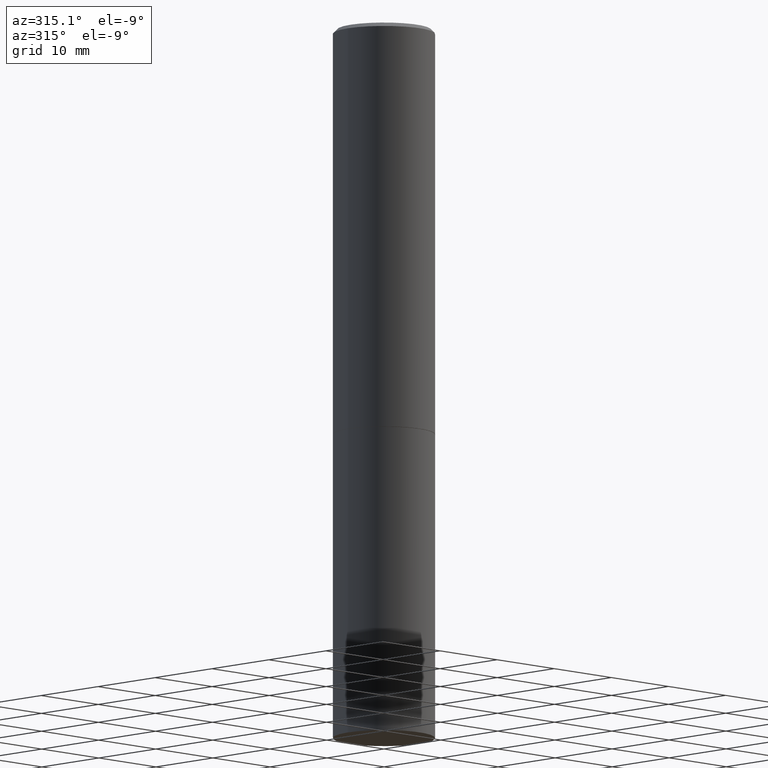
[diagram: clean part render]
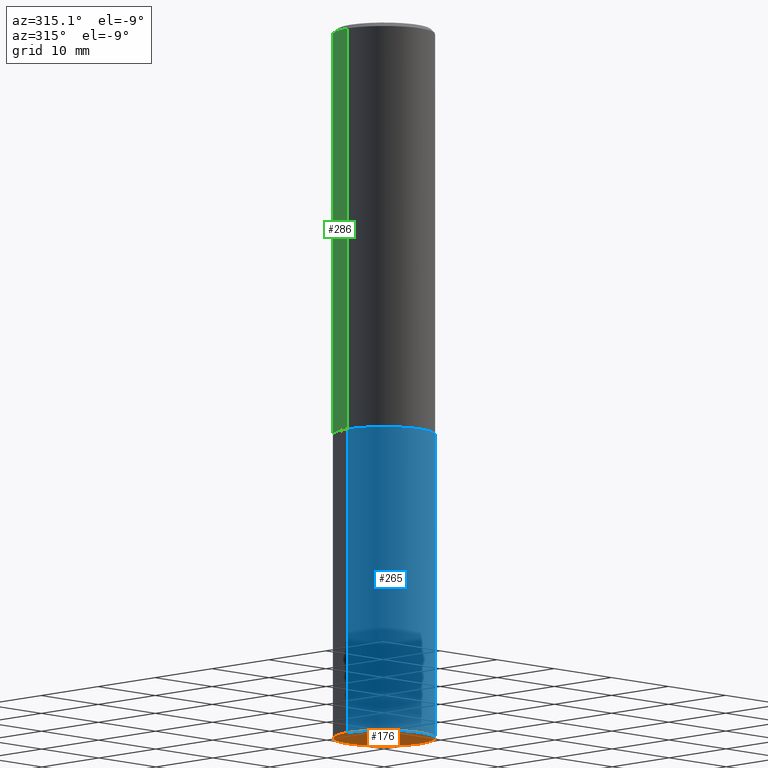
[diagram: same view with three faces highlighted in distinct colors, each labeled with its STEP entity id]
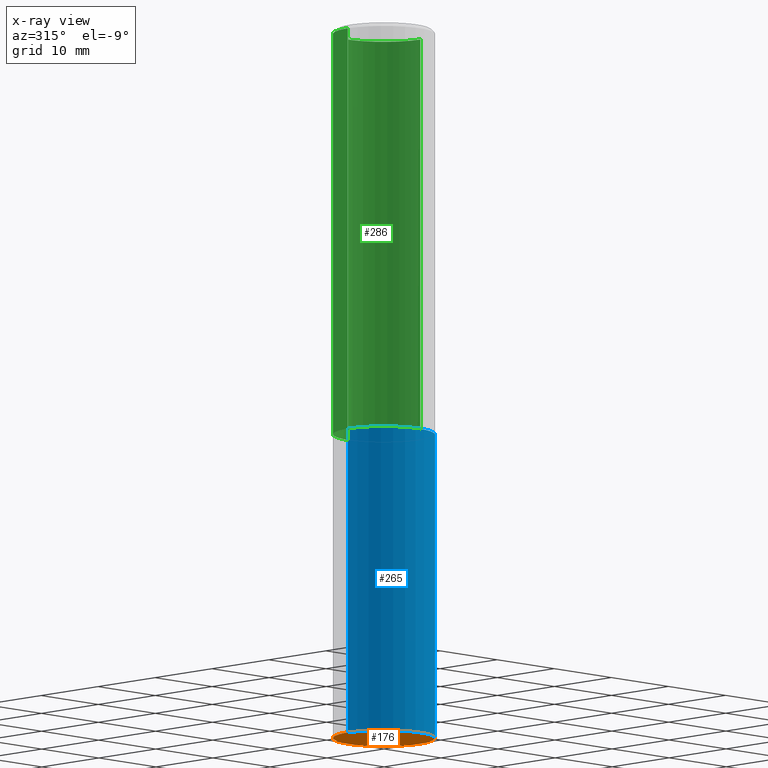
[diagram: x-ray of the same camera — body ghosted, the three highlighted faces saturated]
A machine part, auxiliary view with three faces highlighted in distinct colors.
The next image is the same camera in x-ray (body ghosted, the three faces saturated) — at least one of them is partly hidden behind the body in this view.
Their STEP definitions:

[orange] entity #176 — the highlighted planar face has unit normal (0, -0, -1).
#4 = EDGE_CURVE ( 'NONE', #82, #198, #326, .T. ) ;
#12 = CARTESIAN_POINT ( 'NONE',  ( 1.745740669421652072E-15, 0.2499999999999877598, -3.500000000000000888 ) ) ;
#21 = ORIENTED_EDGE ( 'NONE', *, *, #233, .F. ) ;
#26 = AXIS2_PLACEMENT_3D ( 'NONE', #12, #306, #158 ) ;
#58 = CARTESIAN_POINT ( 'NONE',  ( 8.559140821647976968E-29, -1.222018468595100934E-14, -3.500000000000000000 ) ) ;
#59 = CARTESIAN_POINT ( 'NONE',  ( 8.559140821647976968E-29, -1.222018468595100934E-14, -3.500000000000000000 ) ) ;
#82 = VERTEX_POINT ( 'NONE', #183 ) ;
#93 = EDGE_LOOP ( 'NONE', ( #21, #152 ) ) ;
#96 = AXIS2_PLACEMENT_3D ( 'NONE', #59, #268, #234 ) ;
#106 = FACE_OUTER_BOUND ( 'NONE', #93, .T. ) ;
#152 = ORIENTED_EDGE ( 'NONE', *, *, #4, .F. ) ;
#158 = DIRECTION ( 'NONE',  ( -1.000000000000000000, 6.982962677686265922E-15, -4.876176775795935793E-29 ) ) ;
#167 = DIRECTION ( 'NONE',  ( 1.000000000000000000, -6.982962677686270655E-15, 0.000000000000000000 ) ) ;
#176 = ADVANCED_FACE ( 'NONE', ( #106 ), #217, .T. ) ;
#183 = CARTESIAN_POINT ( 'NONE',  ( -0.2500000000000000000, -7.825216842418399394E-15, -3.500000000000000000 ) ) ;
#193 = CARTESIAN_POINT ( 'NONE',  ( 0.2500000000000000000, -1.396592535537257602E-14, -3.500000000000000000 ) ) ;
#198 = VERTEX_POINT ( 'NONE', #193 ) ;
#199 = DIRECTION ( 'NONE',  ( -2.445468806185136597E-29, 3.491481338843145583E-15, 1.000000000000000000 ) ) ;
#217 = PLANE ( 'NONE',  #26 ) ;
#233 = EDGE_CURVE ( 'NONE', #198, #82, #287, .T. ) ;
#234 = DIRECTION ( 'NONE',  ( 1.000000000000000000, -6.982962677686270655E-15, 0.000000000000000000 ) ) ;
#268 = DIRECTION ( 'NONE',  ( -2.445468806185136597E-29, 3.491481338843145583E-15, 1.000000000000000000 ) ) ;
#287 = CIRCLE ( 'NONE', #344, 0.2500000000000000000 ) ;
#306 = DIRECTION ( 'NONE',  ( 2.438088387897960049E-29, -3.491481338843145188E-15, -1.000000000000000000 ) ) ;
#326 = CIRCLE ( 'NONE', #96, 0.2500000000000000000 ) ;
#344 = AXIS2_PLACEMENT_3D ( 'NONE', #58, #199, #167 ) ;

[blue] entity #265 — the highlighted cylindrical surface (partial cylindrical patch) has radius 6.35 mm, axis along (-0, 0, 1).
#4 = EDGE_CURVE ( 'NONE', #82, #198, #326, .T. ) ;
#8 = CARTESIAN_POINT ( 'NONE',  ( 0.2500000000000000000, -1.745740669421566678E-15, 1.219044193948983948E-29 ) ) ;
#11 = CARTESIAN_POINT ( 'NONE',  ( -0.2500000000000000000, 1.776356839400250465E-15, -1.229733772563726445E-29 ) ) ;
#25 = CARTESIAN_POINT ( 'NONE',  ( 0.000000000000000000, 0.000000000000000000, 0.000000000000000000 ) ) ;
#41 = DIRECTION ( 'NONE',  ( 1.000000000000000000, -6.982962677686266711E-15, 0.000000000000000000 ) ) ;
#44 = VECTOR ( 'NONE', #270, 39.37007874015748143 ) ;
#59 = CARTESIAN_POINT ( 'NONE',  ( 8.559140821647976968E-29, -1.222018468595100934E-14, -3.500000000000000000 ) ) ;
#71 = LINE ( 'NONE', #8, #44 ) ;
#75 = LINE ( 'NONE', #11, #282 ) ;
#77 = DIRECTION ( 'NONE',  ( -2.445468806185136877E-29, 3.491481338843145188E-15, 1.000000000000000000 ) ) ;
#82 = VERTEX_POINT ( 'NONE', #183 ) ;
#83 = VERTEX_POINT ( 'NONE', #269 ) ;
#96 = AXIS2_PLACEMENT_3D ( 'NONE', #59, #268, #234 ) ;
#102 = ORIENTED_EDGE ( 'NONE', *, *, #291, .F. ) ;
#109 = ORIENTED_EDGE ( 'NONE', *, *, #4, .T. ) ;
#119 = DIRECTION ( 'NONE',  ( -2.445468806185136597E-29, 3.491481338843145583E-15, 1.000000000000000000 ) ) ;
#183 = CARTESIAN_POINT ( 'NONE',  ( -0.2500000000000000000, -7.825216842418399394E-15, -3.500000000000000000 ) ) ;
#189 = CARTESIAN_POINT ( 'NONE',  ( 0.2500000000000000000, -8.728703347107857054E-15, -2.000000000000000000 ) ) ;
#193 = CARTESIAN_POINT ( 'NONE',  ( 0.2500000000000000000, -1.396592535537257602E-14, -3.500000000000000000 ) ) ;
#198 = VERTEX_POINT ( 'NONE', #193 ) ;
#201 = DIRECTION ( 'NONE',  ( 1.000000000000000000, -6.982962677686266711E-15, 4.876176775795935793E-29 ) ) ;
#224 = AXIS2_PLACEMENT_3D ( 'NONE', #25, #365, #201 ) ;
#234 = DIRECTION ( 'NONE',  ( 1.000000000000000000, -6.982962677686270655E-15, 0.000000000000000000 ) ) ;
#242 = ORIENTED_EDGE ( 'NONE', *, *, #312, .T. ) ;
#263 = CARTESIAN_POINT ( 'NONE',  ( 4.890937612370273194E-29, -6.982962677686291165E-15, -2.000000000000000000 ) ) ;
#265 = ADVANCED_FACE ( 'NONE', ( #363 ), #285, .T. ) ;
#268 = DIRECTION ( 'NONE',  ( -2.445468806185136597E-29, 3.491481338843145583E-15, 1.000000000000000000 ) ) ;
#269 = CARTESIAN_POINT ( 'NONE',  ( -0.2500000000000000000, -7.825216842418399394E-15, -2.000000000000000000 ) ) ;
#270 = DIRECTION ( 'NONE',  ( -2.445468806185136877E-29, 3.491481338843145188E-15, 1.000000000000000000 ) ) ;
#282 = VECTOR ( 'NONE', #77, 39.37007874015748143 ) ;
#285 = CYLINDRICAL_SURFACE ( 'NONE', #224, 0.2500000000000000000 ) ;
#291 = EDGE_CURVE ( 'NONE', #83, #353, #316, .T. ) ;
#302 = ORIENTED_EDGE ( 'NONE', *, *, #351, .F. ) ;
#312 = EDGE_CURVE ( 'NONE', #198, #353, #71, .T. ) ;
#316 = CIRCLE ( 'NONE', #359, 0.2500000000000000000 ) ;
#326 = CIRCLE ( 'NONE', #96, 0.2500000000000000000 ) ;
#331 = EDGE_LOOP ( 'NONE', ( #302, #109, #242, #102 ) ) ;
#351 = EDGE_CURVE ( 'NONE', #82, #83, #75, .T. ) ;
#353 = VERTEX_POINT ( 'NONE', #189 ) ;
#359 = AXIS2_PLACEMENT_3D ( 'NONE', #263, #119, #41 ) ;
#363 = FACE_OUTER_BOUND ( 'NONE', #331, .T. ) ;
#365 = DIRECTION ( 'NONE',  ( -2.445468806185136597E-29, 3.491481338843145583E-15, 1.000000000000000000 ) ) ;

[green] entity #286 — the highlighted cylindrical surface (partial cylindrical patch) has radius 6.35 mm, axis along (-0, 0, 1).
#15 = ORIENTED_EDGE ( 'NONE', *, *, #170, .T. ) ;
#17 = VERTEX_POINT ( 'NONE', #180 ) ;
#18 = AXIS2_PLACEMENT_3D ( 'NONE', #232, #255, #226 ) ;
#36 = EDGE_CURVE ( 'NONE', #136, #17, #230, .T. ) ;
#45 = EDGE_CURVE ( 'NONE', #136, #221, #117, .T. ) ;
#63 = CYLINDRICAL_SURFACE ( 'NONE', #247, 0.2499999999999998890 ) ;
#67 = ORIENTED_EDGE ( 'NONE', *, *, #45, .F. ) ;
#68 = VECTOR ( 'NONE', #259, 39.37007874015748143 ) ;
#78 = DIRECTION ( 'NONE',  ( -2.445468806185136877E-29, 3.491481338843145188E-15, 1.000000000000000000 ) ) ;
#101 = LINE ( 'NONE', #223, #319 ) ;
#117 = LINE ( 'NONE', #296, #68 ) ;
#136 = VERTEX_POINT ( 'NONE', #271 ) ;
#144 = DIRECTION ( 'NONE',  ( -2.445468806185136597E-29, 3.491481338843145583E-15, 1.000000000000000000 ) ) ;
#149 = DIRECTION ( 'NONE',  ( 1.000000000000000000, -6.982962677686266711E-15, 4.876176775795935793E-29 ) ) ;
#170 = EDGE_CURVE ( 'NONE', #17, #356, #101, .T. ) ;
#177 = CARTESIAN_POINT ( 'NONE',  ( 0.000000000000000000, 0.000000000000000000, 0.000000000000000000 ) ) ;
#180 = CARTESIAN_POINT ( 'NONE',  ( -0.2500000000000000000, -1.748293572161903489E-15, -1.998999999999999888 ) ) ;
#210 = DIRECTION ( 'NONE',  ( 1.000000000000000000, -6.982962677686266711E-15, 0.000000000000000000 ) ) ;
#211 = CIRCLE ( 'NONE', #18, 0.2499999999999998057 ) ;
#212 = ORIENTED_EDGE ( 'NONE', *, *, #237, .F. ) ;
#221 = VERTEX_POINT ( 'NONE', #334 ) ;
#223 = CARTESIAN_POINT ( 'NONE',  ( -0.2499999999999998890, 1.776356839400249676E-15, -1.229733772563726025E-29 ) ) ;
#226 = DIRECTION ( 'NONE',  ( 1.000000000000000000, -6.982962677686266711E-15, 0.000000000000000000 ) ) ;
#230 = CIRCLE ( 'NONE', #310, 0.2500000000000000000 ) ;
#232 = CARTESIAN_POINT ( 'NONE',  ( 4.890937612370287172E-31, -6.982962677686310098E-17, -0.02000000000000005593 ) ) ;
#237 = EDGE_CURVE ( 'NONE', #221, #356, #211, .T. ) ;
#238 = CARTESIAN_POINT ( 'NONE',  ( 4.888492143564087591E-29, -6.979471196347447369E-15, -1.998999999999999888 ) ) ;
#247 = AXIS2_PLACEMENT_3D ( 'NONE', #177, #290, #149 ) ;
#255 = DIRECTION ( 'NONE',  ( -2.445468806185136597E-29, 3.491481338843145583E-15, 1.000000000000000000 ) ) ;
#259 = DIRECTION ( 'NONE',  ( -2.445468806185136877E-29, 3.491481338843145188E-15, 1.000000000000000000 ) ) ;
#271 = CARTESIAN_POINT ( 'NONE',  ( 0.2500000000000000000, -8.725211865769014047E-15, -1.998999999999999888 ) ) ;
#286 = ADVANCED_FACE ( 'NONE', ( #342 ), #63, .T. ) ;
#290 = DIRECTION ( 'NONE',  ( -2.445468806185136597E-29, 3.491481338843145583E-15, 1.000000000000000000 ) ) ;
#296 = CARTESIAN_POINT ( 'NONE',  ( 0.2499999999999998890, -1.745740669421565889E-15, 1.219044193948983388E-29 ) ) ;
#310 = AXIS2_PLACEMENT_3D ( 'NONE', #238, #144, #210 ) ;
#311 = EDGE_LOOP ( 'NONE', ( #358, #15, #212, #67 ) ) ;
#319 = VECTOR ( 'NONE', #78, 39.37007874015748143 ) ;
#324 = CARTESIAN_POINT ( 'NONE',  ( -0.2499999999999998057, 1.675911042644702196E-15, -0.02000000000000005593 ) ) ;
#334 = CARTESIAN_POINT ( 'NONE',  ( 0.2499999999999998057, -1.784954126219744611E-15, -0.02000000000000005593 ) ) ;
#342 = FACE_OUTER_BOUND ( 'NONE', #311, .T. ) ;
#356 = VERTEX_POINT ( 'NONE', #324 ) ;
#358 = ORIENTED_EDGE ( 'NONE', *, *, #36, .T. ) ;